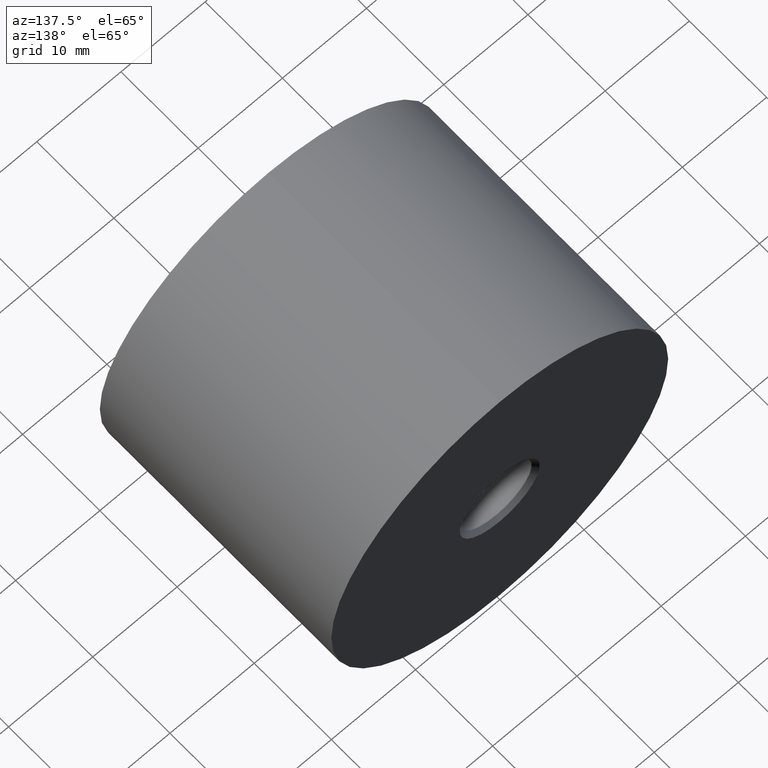
[diagram: clean part render]
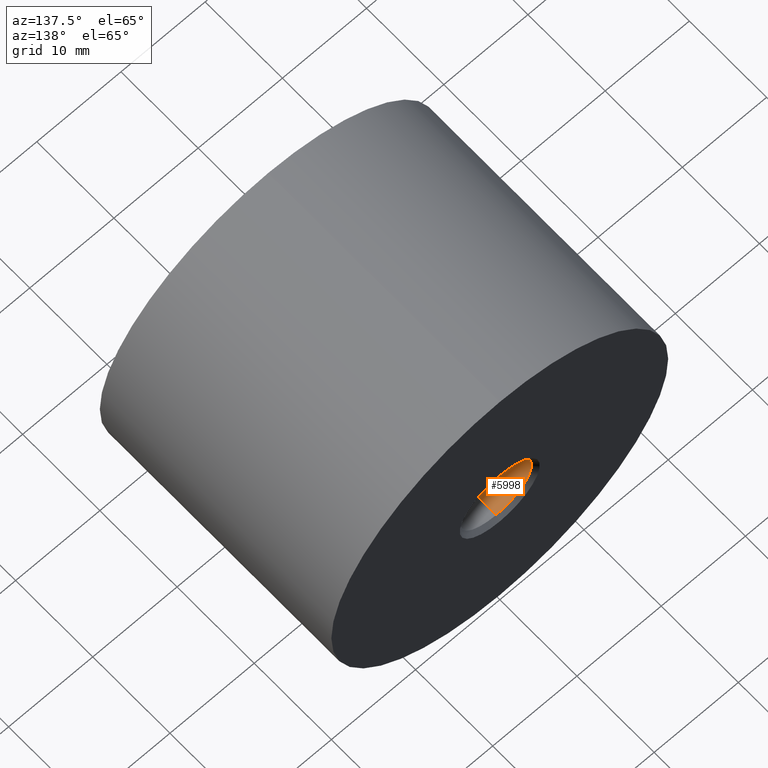
[diagram: same view with one face highlighted and labeled with its STEP entity id]
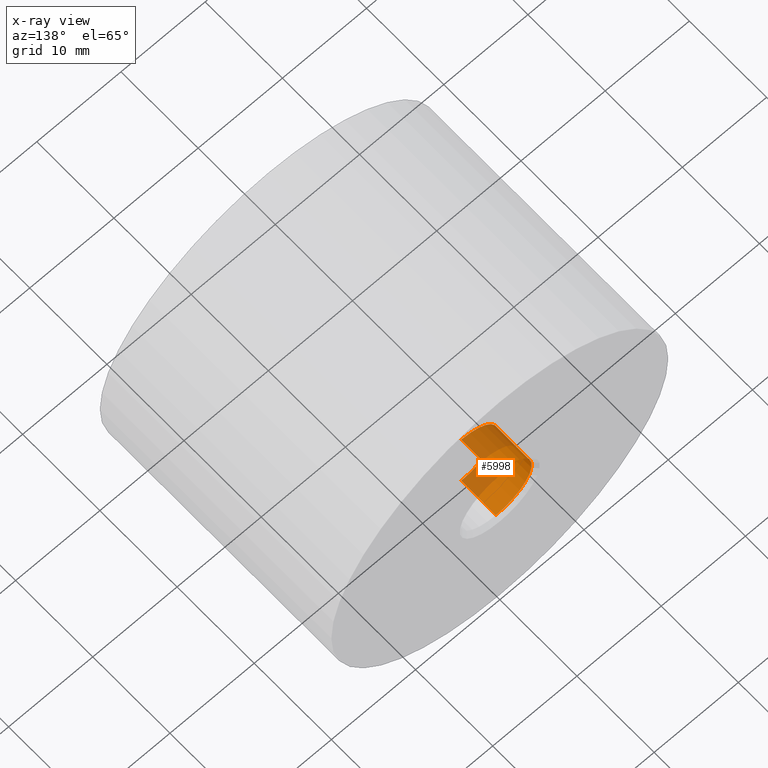
[diagram: x-ray of the same camera — body ghosted, the highlighted face saturated]
A machine part, auxiliary view. The second image highlights one B-rep face of the part: STEP entity #5998.
The next image is the same camera in x-ray: the body ghosted, the highlighted face saturated — about 46% of this face is hidden behind the body in this view.
In plain terms, the highlighted cylindrical surface (partial cylindrical patch) has radius 4.25 mm, axis along (-0, 1, -0).
Its self-contained STEP definition (entity closure, byte-faithful):
#267 = DIRECTION ( 'NONE',  ( -0.000000000000000000, 1.000000000000000000, -0.000000000000000000 ) ) ;
#319 = CARTESIAN_POINT ( 'NONE',  ( 0.000000000000000000, 30.00000000000000000, 4.250000000000001776 ) ) ;
#439 = LINE ( 'NONE', #319, #15704 ) ;
#939 = EDGE_CURVE ( 'NONE', #13370, #6928, #439, .T. ) ;
#1575 = VERTEX_POINT ( 'NONE', #3984 ) ;
#1971 = ORIENTED_EDGE ( 'NONE', *, *, #939, .F. ) ;
#2202 = CARTESIAN_POINT ( 'NONE',  ( 0.000000000000000000, 29.50000000000000000, 0.000000000000000000 ) ) ;
#2404 = ORIENTED_EDGE ( 'NONE', *, *, #4787, .T. ) ;
#3415 = CARTESIAN_POINT ( 'NONE',  ( 5.204748896376253657E-16, 30.00000000000000000, -4.250000000000001776 ) ) ;
#3517 = DIRECTION ( 'NONE',  ( -0.000000000000000000, 1.000000000000000000, -0.000000000000000000 ) ) ;
#3918 = CARTESIAN_POINT ( 'NONE',  ( 0.000000000000000000, 24.99999999999999645, 4.250000000000001776 ) ) ;
#3984 = CARTESIAN_POINT ( 'NONE',  ( 5.510910596163094486E-16, 29.50000000000000000, -4.250000000000004441 ) ) ;
#4456 = VECTOR ( 'NONE', #3517, 1000.000000000000000 ) ;
#4731 = DIRECTION ( 'NONE',  ( -0.000000000000000000, 1.000000000000000000, -0.000000000000000000 ) ) ;
#4764 = EDGE_LOOP ( 'NONE', ( #11077, #6308, #2404, #1971 ) ) ;
#4787 = EDGE_CURVE ( 'NONE', #1575, #6928, #14684, .T. ) ;
#5337 = CIRCLE ( 'NONE', #9642, 4.250000000000001776 ) ;
#5998 = ADVANCED_FACE ( 'NONE', ( #11938 ), #11548, .F. ) ;
#6017 = LINE ( 'NONE', #3415, #4456 ) ;
#6308 = ORIENTED_EDGE ( 'NONE', *, *, #16092, .T. ) ;
#6928 = VERTEX_POINT ( 'NONE', #15390 ) ;
#9642 = AXIS2_PLACEMENT_3D ( 'NONE', #10626, #14432, #13075 ) ;
#9834 = DIRECTION ( 'NONE',  ( 0.000000000000000000, 0.000000000000000000, 1.000000000000000000 ) ) ;
#10061 = AXIS2_PLACEMENT_3D ( 'NONE', #12206, #4731, #9834 ) ;
#10626 = CARTESIAN_POINT ( 'NONE',  ( 0.000000000000000000, 24.99999999999999645, 0.000000000000000000 ) ) ;
#11077 = ORIENTED_EDGE ( 'NONE', *, *, #11544, .F. ) ;
#11128 = VERTEX_POINT ( 'NONE', #13205 ) ;
#11136 = DIRECTION ( 'NONE',  ( 0.000000000000000000, 0.000000000000000000, 1.000000000000000000 ) ) ;
#11544 = EDGE_CURVE ( 'NONE', #11128, #13370, #5337, .T. ) ;
#11548 = CYLINDRICAL_SURFACE ( 'NONE', #10061, 4.250000000000001776 ) ;
#11938 = FACE_OUTER_BOUND ( 'NONE', #4764, .T. ) ;
#12008 = AXIS2_PLACEMENT_3D ( 'NONE', #2202, #13603, #11136 ) ;
#12206 = CARTESIAN_POINT ( 'NONE',  ( 0.000000000000000000, 30.00000000000000000, 0.000000000000000000 ) ) ;
#13075 = DIRECTION ( 'NONE',  ( 0.000000000000000000, 0.000000000000000000, 1.000000000000000000 ) ) ;
#13205 = CARTESIAN_POINT ( 'NONE',  ( 5.204748896376253657E-16, 24.99999999999999645, -4.250000000000001776 ) ) ;
#13370 = VERTEX_POINT ( 'NONE', #3918 ) ;
#13603 = DIRECTION ( 'NONE',  ( -0.000000000000000000, 1.000000000000000000, -0.000000000000000000 ) ) ;
#14432 = DIRECTION ( 'NONE',  ( -0.000000000000000000, 1.000000000000000000, -0.000000000000000000 ) ) ;
#14684 = CIRCLE ( 'NONE', #12008, 4.250000000000004441 ) ;
#15390 = CARTESIAN_POINT ( 'NONE',  ( 0.000000000000000000, 29.50000000000000000, 4.250000000000004441 ) ) ;
#15704 = VECTOR ( 'NONE', #267, 1000.000000000000000 ) ;
#16092 = EDGE_CURVE ( 'NONE', #11128, #1575, #6017, .T. ) ;